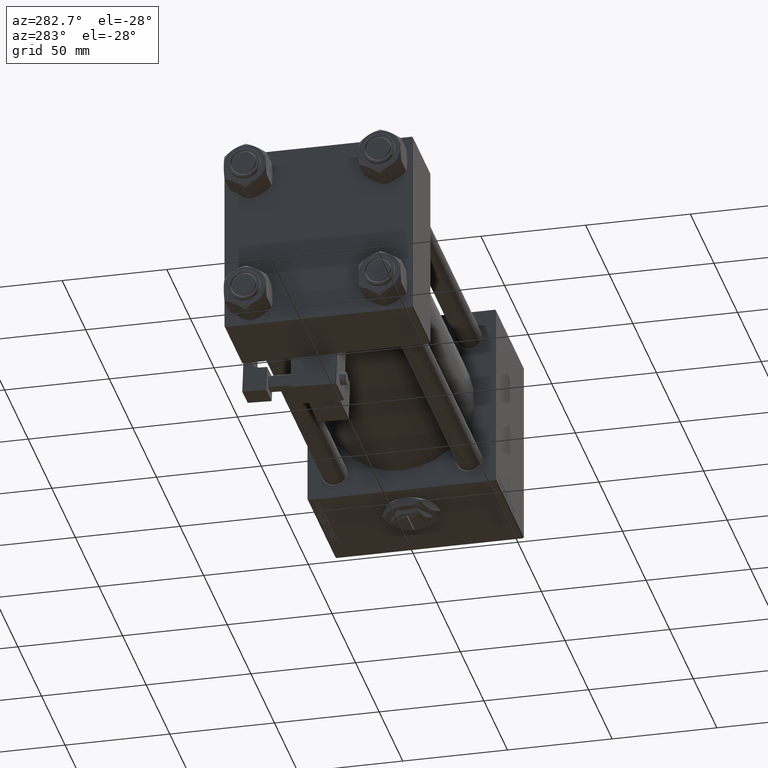
[diagram: clean part render]
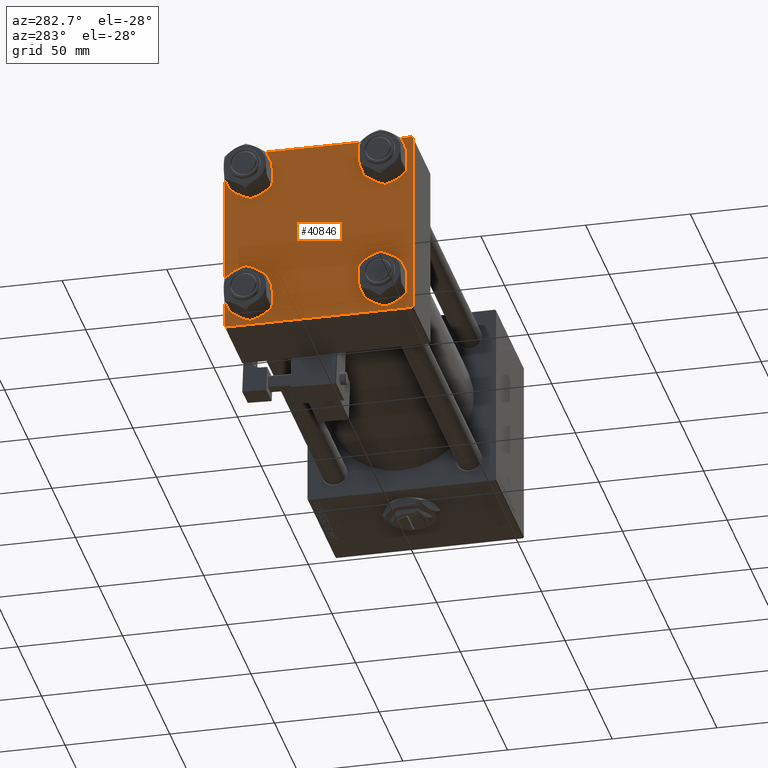
[diagram: same view with one face highlighted and labeled with its STEP entity id]
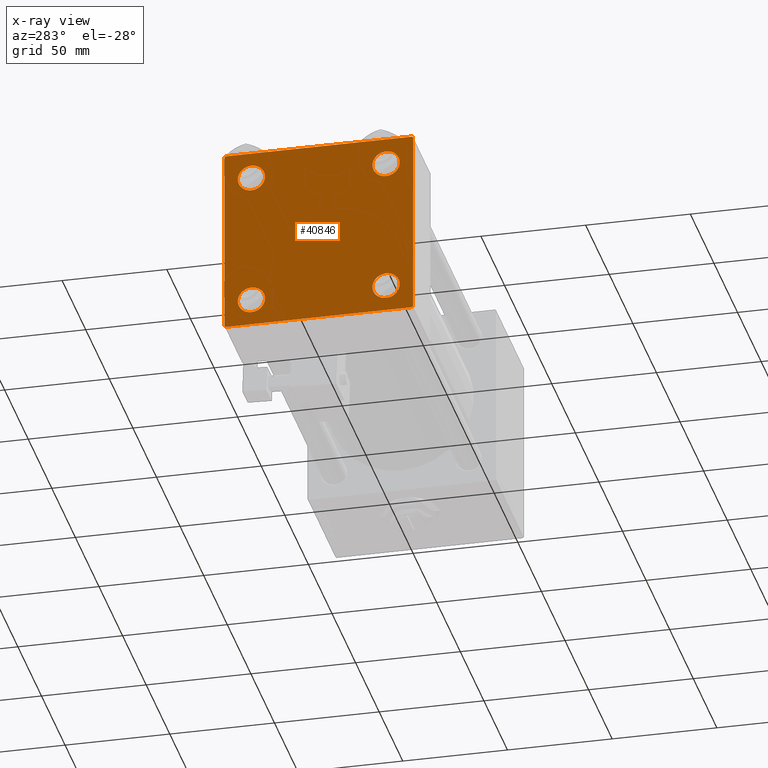
[diagram: x-ray of the same camera — body ghosted, the highlighted face saturated]
A machine part, auxiliary view. The second image highlights one B-rep face of the part: STEP entity #40846.
The next image is the same camera in x-ray: the body ghosted, the highlighted face saturated — about 0% of this face is hidden behind the body in this view.
In plain terms, the highlighted planar face has unit normal (-1, 0, 0).
Its self-contained STEP definition (entity closure, byte-faithful):
#89 = EDGE_LOOP ( 'NONE', ( #25163, #21987 ) ) ;
#658 = EDGE_CURVE ( 'NONE', #39363, #53664, #22618, .T. ) ;
#751 = ORIENTED_EDGE ( 'NONE', *, *, #11085, .F. ) ;
#1038 = CARTESIAN_POINT ( 'NONE',  ( 0.000000000000000000, -32.14999999999997726, 32.15000000000001279 ) ) ;
#1351 = ORIENTED_EDGE ( 'NONE', *, *, #13836, .T. ) ;
#1960 = CARTESIAN_POINT ( 'NONE',  ( 0.000000000000000000, -45.00000000000000711, 44.49999999999997158 ) ) ;
#2247 = DIRECTION ( 'NONE',  ( 1.000000000000000000, -0.000000000000000000, 0.000000000000000000 ) ) ;
#2510 = CARTESIAN_POINT ( 'NONE',  ( 0.000000000000000000, 32.14999999999999147, 32.15000000000000568 ) ) ;
#2704 = DIRECTION ( 'NONE',  ( 0.000000000000000000, 0.000000000000000000, 1.000000000000000000 ) ) ;
#2773 = CARTESIAN_POINT ( 'NONE',  ( 0.000000000000000000, 44.99999999999998579, 45.00000000000001421 ) ) ;
#3579 = VECTOR ( 'NONE', #46183, 1000.000000000000114 ) ;
#4168 = VERTEX_POINT ( 'NONE', #48905 ) ;
#4454 = ORIENTED_EDGE ( 'NONE', *, *, #38991, .T. ) ;
#4700 = DIRECTION ( 'NONE',  ( 0.000000000000000000, 0.000000000000000000, 1.000000000000000000 ) ) ;
#5564 = EDGE_CURVE ( 'NONE', #5807, #47882, #35188, .T. ) ;
#5807 = VERTEX_POINT ( 'NONE', #21341 ) ;
#6332 = CARTESIAN_POINT ( 'NONE',  ( 0.000000000000000000, 32.14999999999999147, -25.65000000000002700 ) ) ;
#6401 = DIRECTION ( 'NONE',  ( 1.000000000000000000, -0.000000000000000000, 0.000000000000000000 ) ) ;
#6926 = CIRCLE ( 'NONE', #21893, 6.499999999999977796 ) ;
#7033 = CARTESIAN_POINT ( 'NONE',  ( 0.000000000000000000, 44.49999999999998579, -44.99999999999998579 ) ) ;
#7267 = CARTESIAN_POINT ( 'NONE',  ( 0.000000000000000000, 44.99999999999998579, 45.00000000000001421 ) ) ;
#7727 = VECTOR ( 'NONE', #42517, 1000.000000000000114 ) ;
#8226 = DIRECTION ( 'NONE',  ( 1.000000000000000000, -0.000000000000000000, 0.000000000000000000 ) ) ;
#9642 = AXIS2_PLACEMENT_3D ( 'NONE', #1038, #43534, #52068 ) ;
#10129 = CIRCLE ( 'NONE', #40932, 6.499999999999977796 ) ;
#10350 = CARTESIAN_POINT ( 'NONE',  ( 0.000000000000000000, -32.14999999999997726, -32.15000000000001279 ) ) ;
#11085 = EDGE_CURVE ( 'NONE', #49560, #16459, #11681, .T. ) ;
#11681 = LINE ( 'NONE', #7267, #42965 ) ;
#11934 = CARTESIAN_POINT ( 'NONE',  ( 0.000000000000000000, -45.00000000000000000, -44.49999999999995737 ) ) ;
#12234 = CARTESIAN_POINT ( 'NONE',  ( 0.000000000000000000, 44.99999999999998579, -44.99999999999998579 ) ) ;
#13172 = EDGE_CURVE ( 'NONE', #36305, #29080, #6926, .T. ) ;
#13227 = EDGE_CURVE ( 'NONE', #41738, #27531, #25422, .T. ) ;
#13836 = EDGE_CURVE ( 'NONE', #49560, #4168, #25674, .T. ) ;
#13996 = VECTOR ( 'NONE', #29044, 1000.000000000000000 ) ;
#15258 = DIRECTION ( 'NONE',  ( 0.000000000000000000, -0.7071067811865474617, 0.7071067811865474617 ) ) ;
#15759 = CIRCLE ( 'NONE', #18403, 6.499999999999977796 ) ;
#15788 = CARTESIAN_POINT ( 'NONE',  ( 0.000000000000000000, -32.14999999999997726, -38.64999999999999147 ) ) ;
#15913 = DIRECTION ( 'NONE',  ( -0.000000000000000000, -0.7071067811865474617, -0.7071067811865474617 ) ) ;
#16455 = CARTESIAN_POINT ( 'NONE',  ( 0.000000000000000000, 44.74999999999998579, -44.74999999999998579 ) ) ;
#16459 = VERTEX_POINT ( 'NONE', #34771 ) ;
#16653 = DIRECTION ( 'NONE',  ( 0.000000000000000000, 0.000000000000000000, 1.000000000000000000 ) ) ;
#17737 = LINE ( 'NONE', #34017, #3579 ) ;
#18278 = ORIENTED_EDGE ( 'NONE', *, *, #24530, .T. ) ;
#18403 = AXIS2_PLACEMENT_3D ( 'NONE', #50012, #54436, #16653 ) ;
#18674 = AXIS2_PLACEMENT_3D ( 'NONE', #25925, #29527, #4700 ) ;
#18733 = CARTESIAN_POINT ( 'NONE',  ( 0.000000000000000000, 32.14999999999999147, 25.65000000000002700 ) ) ;
#19081 = DIRECTION ( 'NONE',  ( 0.000000000000000000, 0.000000000000000000, 1.000000000000000000 ) ) ;
#19156 = DIRECTION ( 'NONE',  ( 0.000000000000000000, 0.000000000000000000, 1.000000000000000000 ) ) ;
#19637 = FACE_BOUND ( 'NONE', #37811, .T. ) ;
#19720 = VERTEX_POINT ( 'NONE', #51243 ) ;
#20409 = CIRCLE ( 'NONE', #18674, 6.500000000000019540 ) ;
#20605 = ORIENTED_EDGE ( 'NONE', *, *, #37971, .T. ) ;
#20692 = ORIENTED_EDGE ( 'NONE', *, *, #29954, .T. ) ;
#21341 = CARTESIAN_POINT ( 'NONE',  ( 0.000000000000000000, -32.14999999999997726, 25.64999999999999147 ) ) ;
#21611 = EDGE_CURVE ( 'NONE', #40951, #48128, #23353, .T. ) ;
#21803 = EDGE_CURVE ( 'NONE', #53664, #39363, #45003, .T. ) ;
#21893 = AXIS2_PLACEMENT_3D ( 'NONE', #2510, #2247, #27876 ) ;
#21987 = ORIENTED_EDGE ( 'NONE', *, *, #33447, .T. ) ;
#21994 = EDGE_CURVE ( 'NONE', #27228, #16459, #17737, .T. ) ;
#22058 = ORIENTED_EDGE ( 'NONE', *, *, #5564, .T. ) ;
#22340 = CARTESIAN_POINT ( 'NONE',  ( 0.000000000000000000, -32.14999999999997726, -25.65000000000003411 ) ) ;
#22618 = CIRCLE ( 'NONE', #53455, 6.499999999999977796 ) ;
#23051 = ORIENTED_EDGE ( 'NONE', *, *, #52801, .F. ) ;
#23129 = ORIENTED_EDGE ( 'NONE', *, *, #21611, .T. ) ;
#23353 = LINE ( 'NONE', #16455, #49396 ) ;
#24530 = EDGE_CURVE ( 'NONE', #19720, #49425, #52761, .T. ) ;
#24863 = FACE_BOUND ( 'NONE', #36704, .T. ) ;
#25147 = CARTESIAN_POINT ( 'NONE',  ( 0.000000000000000000, 44.49999999999998579, 45.00000000000001421 ) ) ;
#25163 = ORIENTED_EDGE ( 'NONE', *, *, #13227, .T. ) ;
#25422 = CIRCLE ( 'NONE', #28931, 6.499999999999977796 ) ;
#25552 = CARTESIAN_POINT ( 'NONE',  ( 0.000000000000000000, 32.14999999999999147, -32.15000000000000568 ) ) ;
#25674 = LINE ( 'NONE', #29278, #7727 ) ;
#25925 = CARTESIAN_POINT ( 'NONE',  ( 0.000000000000000000, -32.14999999999997726, 32.15000000000001279 ) ) ;
#26631 = CARTESIAN_POINT ( 'NONE',  ( 0.000000000000000000, -32.14999999999997726, 38.65000000000003411 ) ) ;
#27228 = VERTEX_POINT ( 'NONE', #1960 ) ;
#27531 = VERTEX_POINT ( 'NONE', #31860 ) ;
#27876 = DIRECTION ( 'NONE',  ( 0.000000000000000000, 0.000000000000000000, 1.000000000000000000 ) ) ;
#28931 = AXIS2_PLACEMENT_3D ( 'NONE', #40036, #6401, #19081 ) ;
#29044 = DIRECTION ( 'NONE',  ( 0.000000000000000000, -1.000000000000000000, -1.541976423090495633E-16 ) ) ;
#29080 = VERTEX_POINT ( 'NONE', #18733 ) ;
#29278 = CARTESIAN_POINT ( 'NONE',  ( 0.000000000000000000, 44.74999999999999289, 44.74999999999999289 ) ) ;
#29427 = DIRECTION ( 'NONE',  ( 1.000000000000000000, -0.000000000000000000, 0.000000000000000000 ) ) ;
#29527 = DIRECTION ( 'NONE',  ( 1.000000000000000000, -0.000000000000000000, 0.000000000000000000 ) ) ;
#29954 = EDGE_CURVE ( 'NONE', #4168, #40951, #45270, .T. ) ;
#30728 = LINE ( 'NONE', #43980, #35586 ) ;
#31016 = VECTOR ( 'NONE', #15258, 1000.000000000000114 ) ;
#31860 = CARTESIAN_POINT ( 'NONE',  ( 0.000000000000000000, 32.14999999999999147, -38.64999999999998437 ) ) ;
#31921 = ORIENTED_EDGE ( 'NONE', *, *, #658, .T. ) ;
#31930 = ORIENTED_EDGE ( 'NONE', *, *, #13172, .T. ) ;
#32518 = ORIENTED_EDGE ( 'NONE', *, *, #21803, .T. ) ;
#32631 = AXIS2_PLACEMENT_3D ( 'NONE', #10350, #53077, #19156 ) ;
#32864 = FACE_BOUND ( 'NONE', #89, .T. ) ;
#33447 = EDGE_CURVE ( 'NONE', #27531, #41738, #10129, .T. ) ;
#34017 = CARTESIAN_POINT ( 'NONE',  ( -0.000000000000000000, -44.75000000000029843, 44.74999999999967315 ) ) ;
#34462 = ORIENTED_EDGE ( 'NONE', *, *, #21994, .T. ) ;
#34505 = CARTESIAN_POINT ( 'NONE',  ( 0.000000000000000000, 44.99999999999998579, -44.49999999999995737 ) ) ;
#34601 = VECTOR ( 'NONE', #40287, 1000.000000000000000 ) ;
#34771 = CARTESIAN_POINT ( 'NONE',  ( 0.000000000000000000, -44.49999999999995737, 45.00000000000000000 ) ) ;
#35188 = CIRCLE ( 'NONE', #9642, 6.500000000000019540 ) ;
#35586 = VECTOR ( 'NONE', #43707, 1000.000000000000000 ) ;
#36099 = AXIS2_PLACEMENT_3D ( 'NONE', #49695, #49962, #45566 ) ;
#36305 = VERTEX_POINT ( 'NONE', #45194 ) ;
#36454 = PLANE ( 'NONE',  #36099 ) ;
#36704 = EDGE_LOOP ( 'NONE', ( #31921, #32518 ) ) ;
#37811 = EDGE_LOOP ( 'NONE', ( #31930, #4454 ) ) ;
#37971 = EDGE_CURVE ( 'NONE', #48128, #19720, #49461, .T. ) ;
#38991 = EDGE_CURVE ( 'NONE', #29080, #36305, #15759, .T. ) ;
#39363 = VERTEX_POINT ( 'NONE', #22340 ) ;
#40036 = CARTESIAN_POINT ( 'NONE',  ( 0.000000000000000000, 32.14999999999999147, -32.15000000000000568 ) ) ;
#40084 = DIRECTION ( 'NONE',  ( 0.000000000000000000, -1.000000000000000000, -1.541976423090495387E-16 ) ) ;
#40287 = DIRECTION ( 'NONE',  ( 0.000000000000000000, 0.000000000000000000, -1.000000000000000000 ) ) ;
#40331 = CARTESIAN_POINT ( 'NONE',  ( 0.000000000000000000, -44.74999999999998579, -44.74999999999998579 ) ) ;
#40846 = ADVANCED_FACE ( 'NONE', ( #41423, #24863, #32864, #19637, #44745 ), #36454, .T. ) ;
#40932 = AXIS2_PLACEMENT_3D ( 'NONE', #25552, #29427, #50665 ) ;
#40951 = VERTEX_POINT ( 'NONE', #34505 ) ;
#41423 = FACE_BOUND ( 'NONE', #49182, .T. ) ;
#41738 = VERTEX_POINT ( 'NONE', #6332 ) ;
#42517 = DIRECTION ( 'NONE',  ( 0.000000000000000000, 0.7071067811865474617, -0.7071067811865474617 ) ) ;
#42965 = VECTOR ( 'NONE', #40084, 1000.000000000000000 ) ;
#43534 = DIRECTION ( 'NONE',  ( 1.000000000000000000, -0.000000000000000000, 0.000000000000000000 ) ) ;
#43707 = DIRECTION ( 'NONE',  ( 0.000000000000000000, 7.709882115452476934E-17, -1.000000000000000000 ) ) ;
#43845 = ORIENTED_EDGE ( 'NONE', *, *, #44709, .T. ) ;
#43980 = CARTESIAN_POINT ( 'NONE',  ( 0.000000000000000000, -45.00000000000000711, 45.00000000000000000 ) ) ;
#44709 = EDGE_CURVE ( 'NONE', #47882, #5807, #20409, .T. ) ;
#44745 = FACE_OUTER_BOUND ( 'NONE', #54014, .T. ) ;
#45003 = CIRCLE ( 'NONE', #32631, 6.499999999999977796 ) ;
#45194 = CARTESIAN_POINT ( 'NONE',  ( 0.000000000000000000, 32.14999999999999147, 38.64999999999999147 ) ) ;
#45270 = LINE ( 'NONE', #2773, #34601 ) ;
#45566 = DIRECTION ( 'NONE',  ( -0.000000000000000000, 0.000000000000000000, 1.000000000000000000 ) ) ;
#46183 = DIRECTION ( 'NONE',  ( -0.000000000000000000, 0.7071067811865425767, 0.7071067811865524577 ) ) ;
#47882 = VERTEX_POINT ( 'NONE', #26631 ) ;
#48128 = VERTEX_POINT ( 'NONE', #7033 ) ;
#48905 = CARTESIAN_POINT ( 'NONE',  ( 0.000000000000000000, 44.99999999999998579, 44.50000000000001421 ) ) ;
#49182 = EDGE_LOOP ( 'NONE', ( #43845, #22058 ) ) ;
#49396 = VECTOR ( 'NONE', #15913, 1000.000000000000114 ) ;
#49425 = VERTEX_POINT ( 'NONE', #11934 ) ;
#49461 = LINE ( 'NONE', #12234, #13996 ) ;
#49560 = VERTEX_POINT ( 'NONE', #25147 ) ;
#49695 = CARTESIAN_POINT ( 'NONE',  ( 0.000000000000000000, 0.000000000000000000, 0.000000000000000000 ) ) ;
#49865 = CARTESIAN_POINT ( 'NONE',  ( 0.000000000000000000, -32.14999999999997726, -32.15000000000001279 ) ) ;
#49962 = DIRECTION ( 'NONE',  ( -1.000000000000000000, 0.000000000000000000, -0.000000000000000000 ) ) ;
#50012 = CARTESIAN_POINT ( 'NONE',  ( 0.000000000000000000, 32.14999999999999147, 32.15000000000000568 ) ) ;
#50665 = DIRECTION ( 'NONE',  ( 0.000000000000000000, 0.000000000000000000, 1.000000000000000000 ) ) ;
#51243 = CARTESIAN_POINT ( 'NONE',  ( 0.000000000000000000, -44.49999999999995737, -45.00000000000000000 ) ) ;
#52068 = DIRECTION ( 'NONE',  ( 0.000000000000000000, 0.000000000000000000, 1.000000000000000000 ) ) ;
#52761 = LINE ( 'NONE', #40331, #31016 ) ;
#52801 = EDGE_CURVE ( 'NONE', #27228, #49425, #30728, .T. ) ;
#53077 = DIRECTION ( 'NONE',  ( 1.000000000000000000, -0.000000000000000000, 0.000000000000000000 ) ) ;
#53455 = AXIS2_PLACEMENT_3D ( 'NONE', #49865, #8226, #2704 ) ;
#53664 = VERTEX_POINT ( 'NONE', #15788 ) ;
#54014 = EDGE_LOOP ( 'NONE', ( #20692, #23129, #20605, #18278, #23051, #34462, #751, #1351 ) ) ;
#54436 = DIRECTION ( 'NONE',  ( 1.000000000000000000, -0.000000000000000000, 0.000000000000000000 ) ) ;